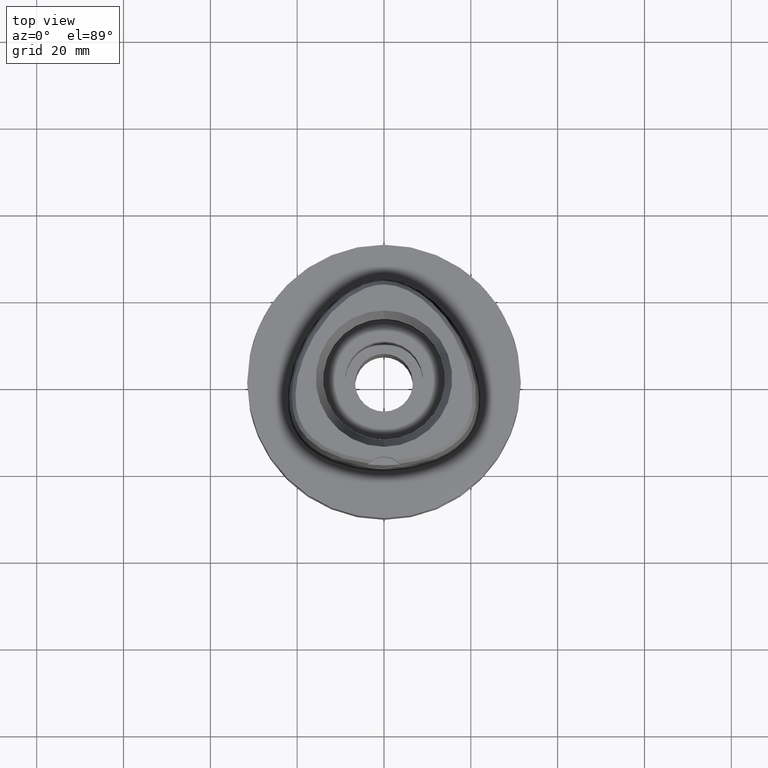
[diagram: clean part render]
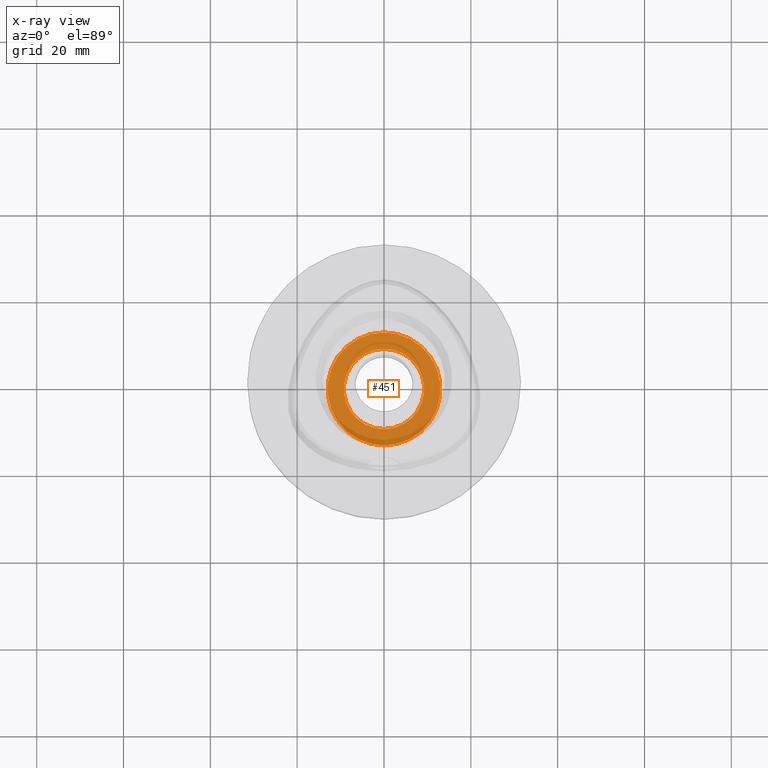
[diagram: x-ray — body ghosted, one internal face saturated and labeled with its STEP entity id]
A machine part, top view, then the same camera in x-ray: the body is ghosted and one INTERNAL B-rep face — a face not visible from any outside direction — is saturated and labeled: STEP entity #451.
In plain terms, the highlighted planar face has unit normal (0, 0, -1).
Its self-contained STEP definition (entity closure, byte-faithful):
#42 = CIRCLE ( 'NONE', #2228, 9.250000000000000000 ) ;
#300 = DIRECTION ( 'NONE',  ( 0.0000000000000000000, -1.000000000000000000, 0.0000000000000000000 ) ) ;
#327 = ORIENTED_EDGE ( 'NONE', *, *, #2790, .F. ) ;
#410 = EDGE_CURVE ( 'NONE', #3113, #2032, #2706, .T. ) ;
#451 = ADVANCED_FACE ( 'NONE', ( #1259, #3781 ), #3012, .F. ) ;
#811 = CARTESIAN_POINT ( 'NONE',  ( 0.0000000000000000000, 0.0000000000000000000, -11.00000000000000000 ) ) ;
#826 = DIRECTION ( 'NONE',  ( 0.0000000000000000000, 1.000000000000000000, 0.0000000000000000000 ) ) ;
#916 = CARTESIAN_POINT ( 'NONE',  ( 0.0000000000000000000, -13.00000000000000000, -11.00000000000000000 ) ) ;
#985 = AXIS2_PLACEMENT_3D ( 'NONE', #4754, #3461, #5492 ) ;
#1078 = EDGE_CURVE ( 'NONE', #2118, #3595, #1709, .T. ) ;
#1259 = FACE_OUTER_BOUND ( 'NONE', #3505, .T. ) ;
#1709 = CIRCLE ( 'NONE', #2536, 13.00000000000000000 ) ;
#1830 = CARTESIAN_POINT ( 'NONE',  ( 0.0000000000000000000, 9.250000000000000000, -11.00000000000000000 ) ) ;
#1976 = ORIENTED_EDGE ( 'NONE', *, *, #1078, .F. ) ;
#2032 = VERTEX_POINT ( 'NONE', #5362 ) ;
#2086 = EDGE_CURVE ( 'NONE', #2032, #3113, #42, .T. ) ;
#2118 = VERTEX_POINT ( 'NONE', #3278 ) ;
#2139 = CIRCLE ( 'NONE', #3859, 13.00000000000000000 ) ;
#2228 = AXIS2_PLACEMENT_3D ( 'NONE', #2735, #4442, #2304 ) ;
#2304 = DIRECTION ( 'NONE',  ( 0.0000000000000000000, -1.000000000000000000, 0.0000000000000000000 ) ) ;
#2536 = AXIS2_PLACEMENT_3D ( 'NONE', #4696, #3409, #826 ) ;
#2706 = CIRCLE ( 'NONE', #985, 9.250000000000000000 ) ;
#2735 = CARTESIAN_POINT ( 'NONE',  ( 0.0000000000000000000, 0.0000000000000000000, -11.00000000000000000 ) ) ;
#2790 = EDGE_CURVE ( 'NONE', #3595, #2118, #2139, .T. ) ;
#3012 = PLANE ( 'NONE',  #5471 ) ;
#3113 = VERTEX_POINT ( 'NONE', #1830 ) ;
#3278 = CARTESIAN_POINT ( 'NONE',  ( 0.0000000000000000000, 13.00000000000000000, -11.00000000000000000 ) ) ;
#3409 = DIRECTION ( 'NONE',  ( 0.0000000000000000000, 0.0000000000000000000, -1.000000000000000000 ) ) ;
#3461 = DIRECTION ( 'NONE',  ( 0.0000000000000000000, 0.0000000000000000000, 1.000000000000000000 ) ) ;
#3505 = EDGE_LOOP ( 'NONE', ( #1976, #327 ) ) ;
#3595 = VERTEX_POINT ( 'NONE', #916 ) ;
#3781 = FACE_BOUND ( 'NONE', #4282, .T. ) ;
#3859 = AXIS2_PLACEMENT_3D ( 'NONE', #811, #5059, #300 ) ;
#4201 = ORIENTED_EDGE ( 'NONE', *, *, #410, .F. ) ;
#4248 = DIRECTION ( 'NONE',  ( 0.0000000000000000000, 0.0000000000000000000, -1.000000000000000000 ) ) ;
#4282 = EDGE_LOOP ( 'NONE', ( #4201, #4982 ) ) ;
#4442 = DIRECTION ( 'NONE',  ( 0.0000000000000000000, 0.0000000000000000000, 1.000000000000000000 ) ) ;
#4694 = CARTESIAN_POINT ( 'NONE',  ( 0.0000000000000000000, 0.0000000000000000000, -11.00000000000000000 ) ) ;
#4696 = CARTESIAN_POINT ( 'NONE',  ( 0.0000000000000000000, 0.0000000000000000000, -11.00000000000000000 ) ) ;
#4716 = DIRECTION ( 'NONE',  ( 0.0000000000000000000, -1.000000000000000000, 0.0000000000000000000 ) ) ;
#4754 = CARTESIAN_POINT ( 'NONE',  ( 0.0000000000000000000, 0.0000000000000000000, -11.00000000000000000 ) ) ;
#4982 = ORIENTED_EDGE ( 'NONE', *, *, #2086, .F. ) ;
#5059 = DIRECTION ( 'NONE',  ( 0.0000000000000000000, 0.0000000000000000000, -1.000000000000000000 ) ) ;
#5362 = CARTESIAN_POINT ( 'NONE',  ( 0.0000000000000000000, -9.250000000000000000, -11.00000000000000000 ) ) ;
#5471 = AXIS2_PLACEMENT_3D ( 'NONE', #4694, #4248, #4716 ) ;
#5492 = DIRECTION ( 'NONE',  ( 0.0000000000000000000, 1.000000000000000000, 0.0000000000000000000 ) ) ;